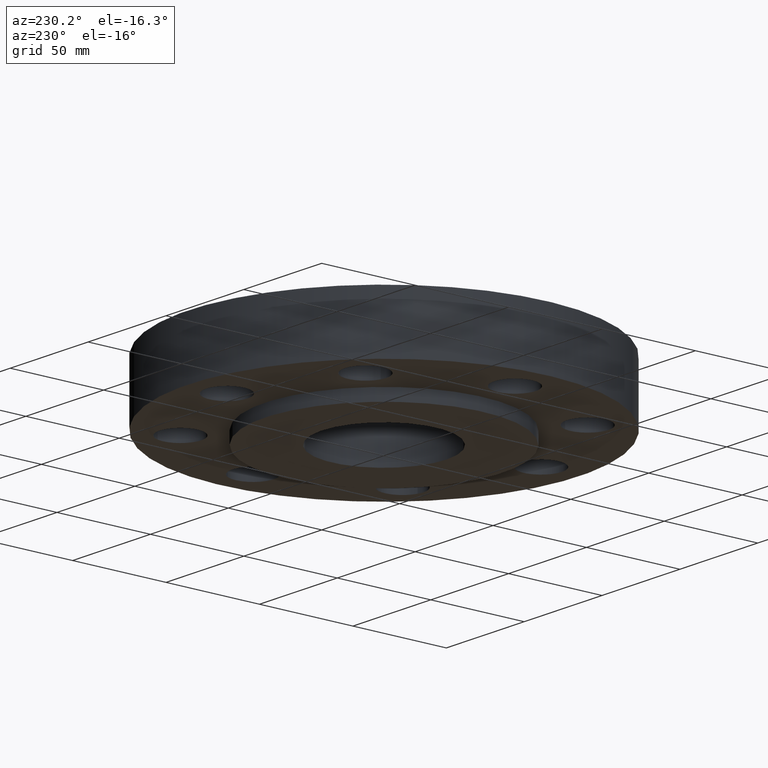
[diagram: clean part render]
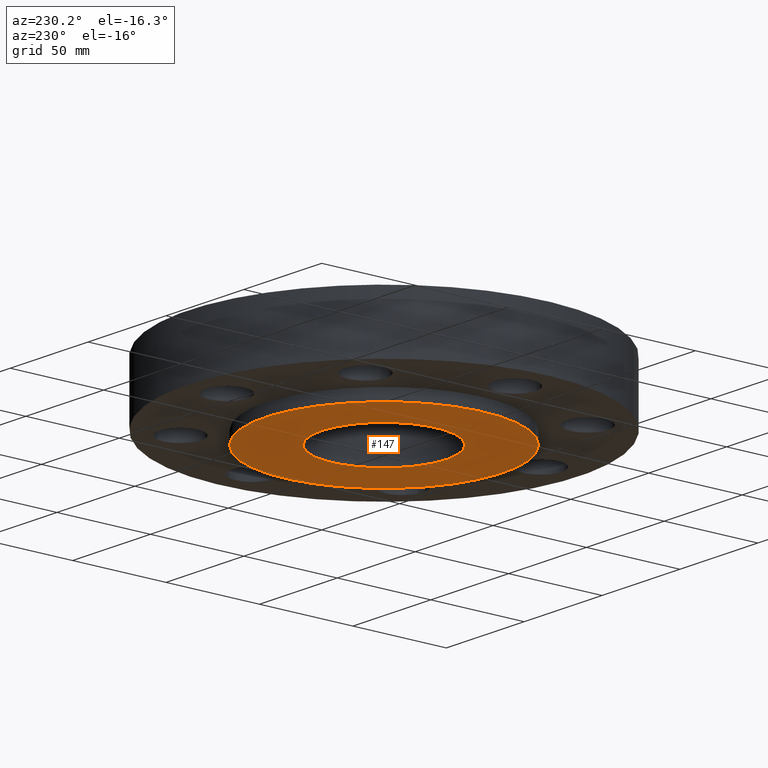
[diagram: same view with one face highlighted and labeled with its STEP entity id]
A machine part, auxiliary view. The second image highlights one B-rep face of the part: STEP entity #147.
In plain terms, the highlighted planar face has unit normal (0, 0, -1).
Its self-contained STEP definition (entity closure, byte-faithful):
#91=AXIS2_PLACEMENT_3D('Circle Axis2P3D',#89,#90,$) ;
#110=AXIS2_PLACEMENT_3D('Circle Axis2P3D',#108,#109,$) ;
#123=AXIS2_PLACEMENT_3D('Plane Axis2P3D',#120,#121,#122) ;
#127=AXIS2_PLACEMENT_3D('Circle Axis2P3D',#125,#126,$) ;
#136=AXIS2_PLACEMENT_3D('Circle Axis2P3D',#134,#135,$) ;
#86=CARTESIAN_POINT('Vertex',(0.629006306651,1.1513883212,-0.250000000001)) ;
#89=CARTESIAN_POINT('Axis2P3D Location',(0.,0.,-0.250000000001)) ;
#93=CARTESIAN_POINT('Vertex',(-0.629006306651,-1.1513883212,-0.250000000001)) ;
#108=CARTESIAN_POINT('Axis2P3D Location',(0.,0.,-0.250000000001)) ;
#120=CARTESIAN_POINT('Axis2P3D Location',(0.,1.31200000001,-0.250000000001)) ;
#125=CARTESIAN_POINT('Axis2P3D Location',(0.,0.,-0.250000000001)) ;
#129=CARTESIAN_POINT('Vertex',(-1.19856384652,-2.19395640473,-0.250000000001)) ;
#131=CARTESIAN_POINT('Vertex',(1.19856384652,2.19395640473,-0.250000000001)) ;
#134=CARTESIAN_POINT('Axis2P3D Location',(0.,0.,-0.250000000001)) ;
#90=DIRECTION('Axis2P3D Direction',(0.,0.,-0.0393700787402)) ;
#109=DIRECTION('Axis2P3D Direction',(0.,0.,-0.0393700787402)) ;
#121=DIRECTION('Axis2P3D Direction',(0.,0.,-0.0393700787402)) ;
#122=DIRECTION('Axis2P3D XDirection',(0.0393700787402,0.,0.)) ;
#126=DIRECTION('Axis2P3D Direction',(0.,0.,-0.0393700787402)) ;
#135=DIRECTION('Axis2P3D Direction',(0.,0.,-0.0393700787402)) ;
#140=ORIENTED_EDGE('',*,*,#133,.T.) ;
#141=ORIENTED_EDGE('',*,*,#138,.T.) ;
#144=ORIENTED_EDGE('',*,*,#95,.F.) ;
#145=ORIENTED_EDGE('',*,*,#112,.F.) ;
#146=FACE_BOUND('',#143,.T.) ;
#147=ADVANCED_FACE('PartBody',(#142,#146),#124,.T.) ;
#92=CIRCLE('generated circle',#91,1.31200000001) ;
#111=CIRCLE('generated circle',#110,1.31200000001) ;
#128=CIRCLE('generated circle',#127,2.50000000001) ;
#137=CIRCLE('generated circle',#136,2.50000000001) ;
#95=EDGE_CURVE('',#87,#94,#92,.T.) ;
#112=EDGE_CURVE('',#94,#87,#111,.T.) ;
#133=EDGE_CURVE('',#130,#132,#128,.T.) ;
#138=EDGE_CURVE('',#132,#130,#137,.T.) ;
#139=EDGE_LOOP('',(#140,#141)) ;
#143=EDGE_LOOP('',(#144,#145)) ;
#142=FACE_OUTER_BOUND('',#139,.T.) ;
#124=PLANE('',#123) ;
#87=VERTEX_POINT('',#86) ;
#94=VERTEX_POINT('',#93) ;
#130=VERTEX_POINT('',#129) ;
#132=VERTEX_POINT('',#131) ;